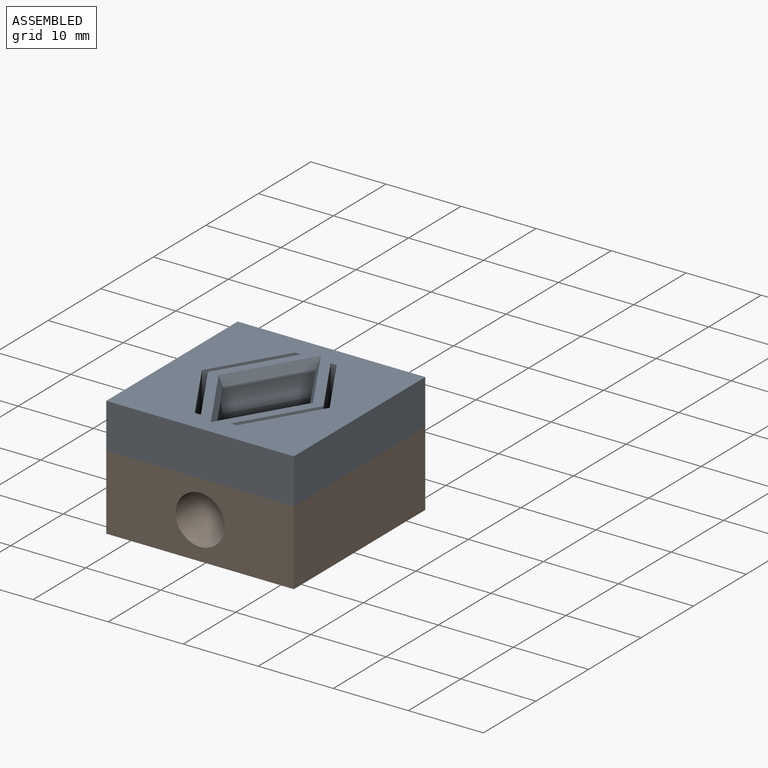
[diagram: assembled view]
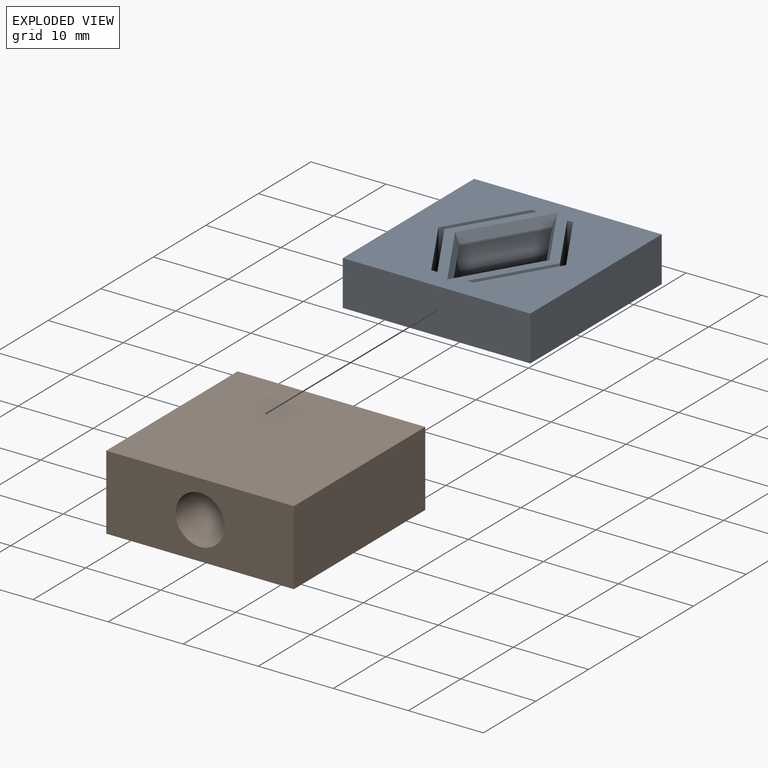
[diagram: exploded view]
GUIDED TOUR — FREECAD ASSEMBLY "DockLink_application_example_assembly"

This assembly has 2 components, labeled P0..P1 below (a component is one placed body or linked part; the same part can appear more than once), held together by 1 modeled joint. A joint is a constraint between two components; its type names the relative motion it leaves free:
  FASTENED — locks the two components together rigidly (no relative motion).
Axis/direction vectors are unit vectors and 'through' points are millimeter coordinates, both in the assembly's world frame.

MATES
  1. FASTENED [Fixed] "Joint": P1 <-> P0, direction (0.000, -1.000, 0.000) through (-12.50, 0.00, 50.00) mm

ASSEMBLY ORDER
  1. P1 — the base component [order verified]
  2. P0 [order verified]
Order-tag legend:
  [order verified] — this step's position reverses a verified removal order: the component was checked to insert without passing through the ones already placed.

Of the 2 components, 1 carries a construction recipe — the FreeCAD feature program (sketches with constraints, then the solid features that consume them) that regenerates the part from scratch, quoted from this document or from the linked companion document it references; the rest are supplied as boundary geometry only. The tour below walks the components in assembly order: each is shown spotlighted twice — in the assembled view, then in the exploded view, where a leader line traces a displaced component back to its assembled socket (components that stay in place when exploded have no leader line; saturated green if recipe-attached, orange if geometry-only; every other component desaturated gray) — followed by its recipe or geometry summary and the mates that hold it.
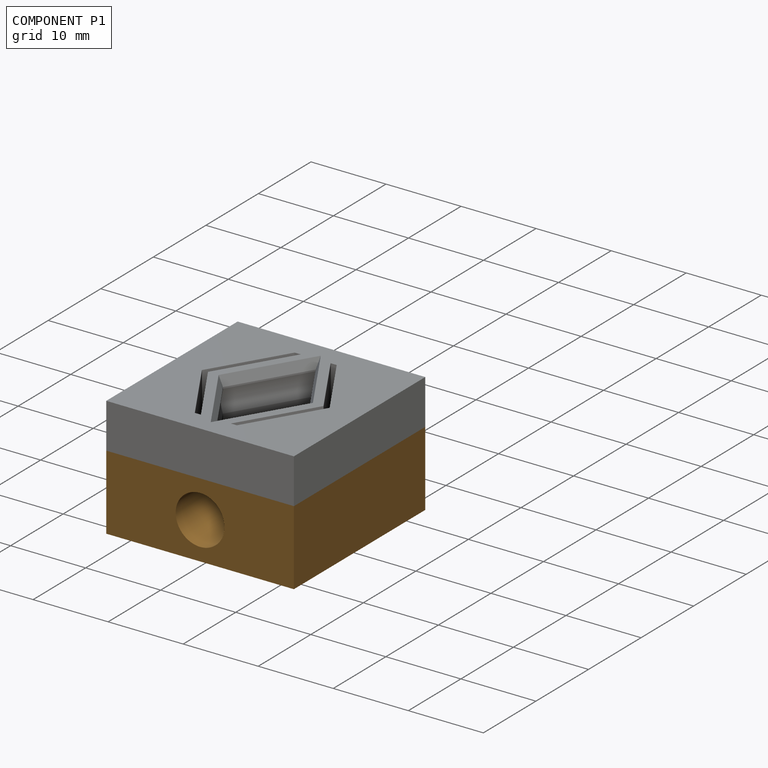
[diagram: component P1 — assembled]
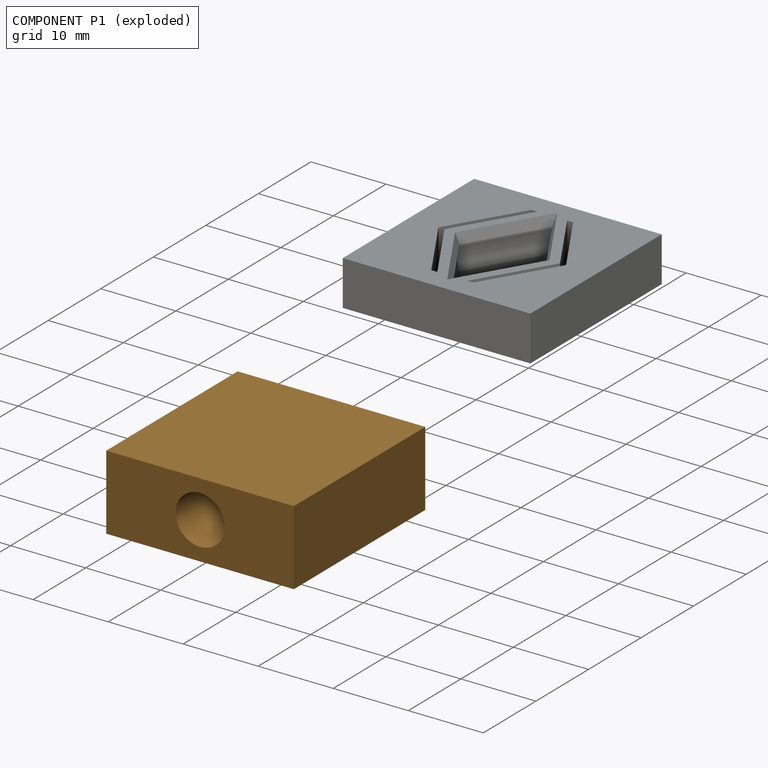
[diagram: component P1 — exploded]
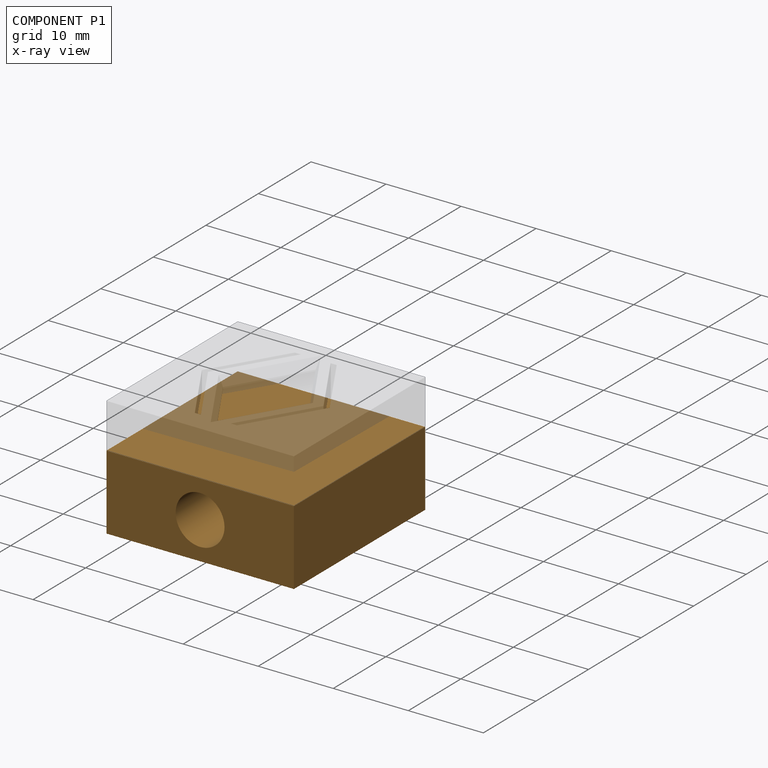
[diagram: component P1 — x-ray view]
COMPONENT P1 — geometry summary ("DockLink_app_example"; no construction recipe available for this part):
  bounding box: 25.0 x 25.0 x 10.0 mm
  tessellated surface: 520 triangles
  volume: 5420 mm^3 (87% of its bounding box)
  symmetry: 2-fold rotationally symmetric about the x axis; 2-fold rotationally symmetric about the z axis; mirror-symmetric across its x mid-plane, y mid-plane
Held by: FASTENED mate "Joint" to P0.
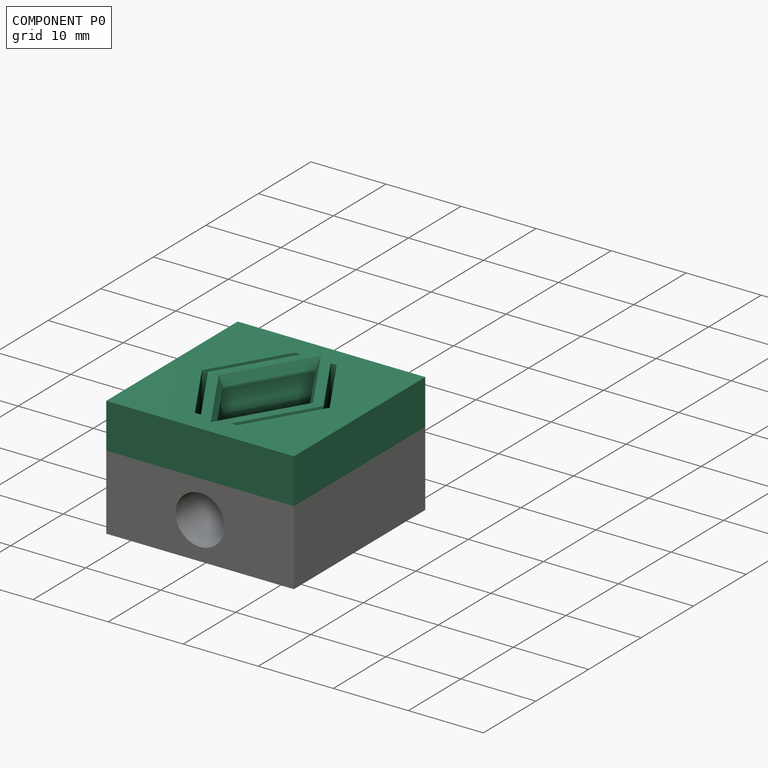
[diagram: component P0 — assembled]
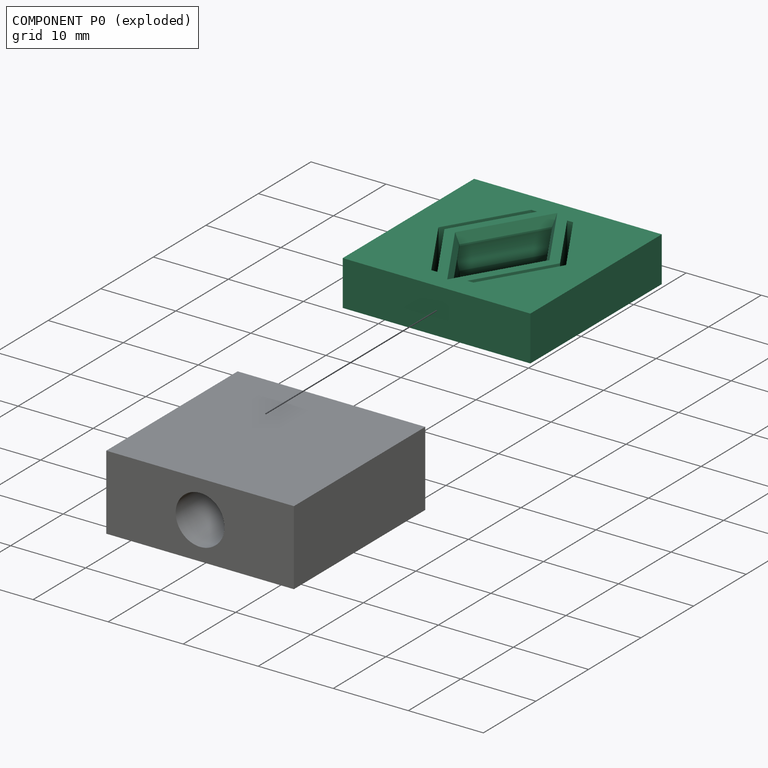
[diagram: component P0 — exploded]
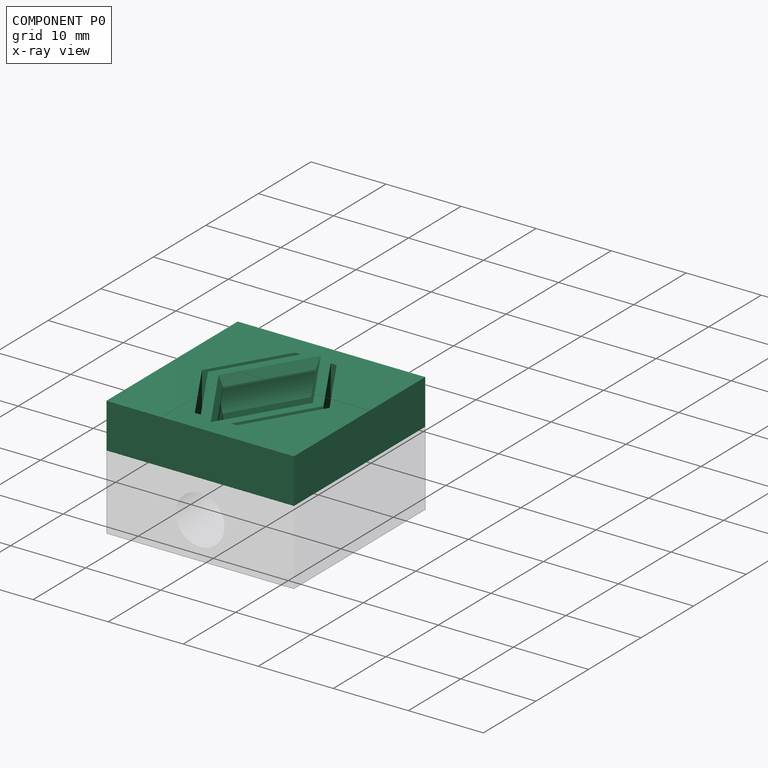
[diagram: component P0 — x-ray view]
COMPONENT P0 — recipe-attached ("Body_DockLink_female", a linked part whose construction recipe lives in a companion FreeCAD document of the same project; that document's serialized recipe follows).
Held by: FASTENED mate "Joint" to P1.
Construction recipe (the companion document, serialized — sketch geometry with constraints, then the solid features built on it; lengths are millimeters unless a unit is written):

FCSTD DOCUMENT  (FreeCAD 1.1R20251031 (Git shallow))
Label: DockLink_female
License: All rights reserved
LicenseURL: https://en.wikipedia.org/wiki/All_rights_reserved
objects: Sketcher::SketchObject×5, App::Point×1, App::VarSet×1, PartDesign::Pad×1, PartDesign::SubtractiveLoft×1, PartDesign::Chamfer×1, PartDesign::Pocket×1, PartDesign::Body×1
note: 23 computed .brp shape members not serialized (recipe doc carries the construction recipe); baked Part::Feature solids carry a one-line shape summary decoded from their .brp

FEATURE [App::Point] Origin001
  Role = Origin
FEATURE [Sketcher::SketchObject] Sketch  label="Sketch_clip_base"
  ArcFitTolerance = 1e-06
  AttachmentSupport = -> [Origin]
  ExternalTypes = [0]
  FullyConstrained = true
  MakeInternals = false
  MapMode = 5
  expr: Constraints[10] = VarSet.height_printbase
  expr: Constraints[11] = VarSet.width_printbase
  expr: Constraints[59] = VarSet.thickness_clip
  expr: Constraints[60] = VarSet.indent_depth_clip + 0.5 mm
  expr: Constraints[70] = VarSet.border_vert
  expr: Constraints[71] = VarSet.border_hori
  sketch-geometry (28):
    g0: LineSegment StartX=-12.5 StartY=12.5 StartZ=0 EndX=-12.5 EndY=-12.5 EndZ=0
    g1: LineSegment StartX=-12.5 StartY=-12.5 StartZ=0 EndX=12.5 EndY=-12.5 EndZ=0
    g2: LineSegment StartX=12.5 StartY=-12.5 StartZ=0 EndX=12.5 EndY=12.5 EndZ=0
    g3: LineSegment StartX=12.5 StartY=12.5 StartZ=0 EndX=-12.5 EndY=12.5 EndZ=0
    g4: GeomPoint [constr] X=0 Y=0 Z=0
    g5: LineSegment [constr] StartX=-8.5 StartY=9.5 StartZ=0 EndX=-8.5 EndY=-9.5 EndZ=0
    g6: LineSegment [constr] StartX=-8.5 StartY=-9.5 StartZ=0 EndX=8.5 EndY=-9.5 EndZ=0
    g7: LineSegment [constr] StartX=8.5 StartY=-9.5 StartZ=0 EndX=8.5 EndY=9.5 EndZ=0
    g8: LineSegment [constr] StartX=8.5 StartY=9.5 StartZ=0 EndX=-8.5 EndY=9.5 EndZ=0
    g9: GeomPoint [constr] X=0 Y=0 Z=0
    g10: LineSegment StartX=0 StartY=9.5 StartZ=0 EndX=-5.7 EndY=0 EndZ=0
    g11: LineSegment StartX=-5.7 StartY=0 StartZ=0 EndX=0 EndY=-9.5 EndZ=0
    g12: LineSegment StartX=3e-16 StartY=-9.5 StartZ=0 EndX=5.7 EndY=0 EndZ=0
    g13: LineSegment StartX=5.7 StartY=0 StartZ=0 EndX=0 EndY=9.5 EndZ=0
    g14: LineSegment StartX=-2 StartY=9.5 StartZ=0 EndX=-7.7 EndY=0 EndZ=0
    g15: LineSegment StartX=-7.7 StartY=0 StartZ=0 EndX=-2 EndY=-9.5 EndZ=0
    g16: LineSegment StartX=2 StartY=-9.5 StartZ=0 EndX=7.7 EndY=0 EndZ=0
    g17: LineSegment StartX=7.7 StartY=0 StartZ=0 EndX=2 EndY=9.5 EndZ=0
    g18: LineSegment StartX=-8.5 StartY=5.9e-15 StartZ=0 EndX=-2.8 EndY=9.5 EndZ=0
    g19: LineSegment StartX=-8.5 StartY=5.9e-15 StartZ=0 EndX=-2.8 EndY=-9.5 EndZ=0
    g20: LineSegment StartX=2.8 StartY=-9.5 StartZ=0 EndX=8.5 EndY=5.3e-15 EndZ=0
    g21: LineSegment StartX=8.5 StartY=5.3e-15 StartZ=0 EndX=2.8 EndY=9.5 EndZ=0
    g22: LineSegment [constr] StartX=-7.7 StartY=0 StartZ=0 EndX=-5.7 EndY=0 EndZ=0
    g23: LineSegment [constr] StartX=5.7 StartY=0 StartZ=0 EndX=7.7 EndY=0 EndZ=0
    g24: LineSegment StartX=-2.8 StartY=9.5 StartZ=0 EndX=-2 EndY=9.5 EndZ=0
    g25: LineSegment StartX=2 StartY=9.5 StartZ=0 EndX=2.8 EndY=9.5 EndZ=0
    g26: LineSegment StartX=-2.8 StartY=-9.5 StartZ=0 EndX=-2 EndY=-9.5 EndZ=0
    g27: LineSegment StartX=2 StartY=-9.5 StartZ=0 EndX=2.8 EndY=-9.5 EndZ=0
  constraints (72):
    c: Coincident(g0,g1)
    c: Coincident(g1,g2)
    c: Coincident(g2,g3)
    c: Coincident(g3,g0)
    c: Vertical(g0)
    c: Vertical(g2)
    c: Horizontal(g1)
    c: Horizontal(g3)
    c: Symmetric(g2,g0,g4)
    c: Coincident(g4,g-1)
    c: DistanceY(g0,g0) = 25
    c: DistanceX(g3,g3) = 25
    c: Coincident(g5,g6)
    c: Coincident(g6,g7)
    c: Coincident(g7,g8)
    c: Coincident(g8,g5)
    c: Vertical(g5)
    c: Vertical(g7)
    c: Horizontal(g6)
    c: Horizontal(g8)
    c: Symmetric(g7,g5,g9)
    c: Coincident(g9,g4)
    c: Symmetric(g8,g8,g10)
    c: PointOnObject(g10,g-1)
    c: Coincident(g11,g10)
    c: Symmetric(g6,g6,g11)
    c: Coincident(g12,g11)
    c: Coincident(g13,g12)
    c: Coincident(g13,g10)
    c: PointOnObject(g14,g8)
    c: PointOnObject(g14,g-1)
    c: Coincident(g15,g14)
    c: PointOnObject(g15,g6)
    c: PointOnObject(g16,g6)
    c: PointOnObject(g16,g-1)
    c: Coincident(g17,g16)
    c: PointOnObject(g17,g8)
    c: Parallel(g10,g14)
    c: Parallel(g11,g15)
    c: Parallel(g12,g16)
    c: Parallel(g13,g17)
    c: Symmetric(g5,g5,g18)
    c: PointOnObject(g18,g8)
    c: Coincident(g19,g18)
    c: PointOnObject(g19,g6)
    c: PointOnObject(g20,g6)
    c: Symmetric(g7,g7,g20)
    c: Coincident(g21,g20)
    c: PointOnObject(g21,g8)
    c: Parallel(g17,g21)
    c: Parallel(g16,g20)
    c: Parallel(g15,g19)
    c: Parallel(g18,g14)
    c: Coincident(g22,g14)
    c: Coincident(g22,g10)
    c: Coincident(g23,g12)
    c: Coincident(g23,g16)
    c: Equal(g22,g23)
    c: Symmetric(g10,g12,g4)
    c: Distance(g22,g22) = 2
    c: Distance(g14,g18) = 0.8
    c: DistanceX(g10,g12) = 11.4  'width_male'
    c: Coincident(g24,g18)
    c: Coincident(g24,g14)
    c: Coincident(g25,g17)
    c: Coincident(g25,g21)
    c: Coincident(g26,g19)
    c: Coincident(g26,g15)
    c: Coincident(g27,g16)
    c: Coincident(g27,g20)
    c: Distance(g1,g6) = 3
    c: Distance(g2,g7) = 4
FEATURE [App::VarSet] VarSet
  border_hori = 4
  border_vert = 3
  height_clip = 20
  height_printbase = 25
  indent_depth_clip = 0.3
  indent_distance = 3
  indent_height = 3
  thickness_base = 6
  thickness_clip = 2
  width_clip = 20
  width_printbase = 25
FEATURE [PartDesign::Pad] Pad  label="Pad_clip_base"
  Direction = (0,0,1)
  Length = 6
  Length2 = 10
  Profile = -> Sketch
  ReferenceAxis = -> Sketch [N_Axis]
  Refine = true
  SideType = 0
  Suppressed = false
  Type = 0
  Type2 = 0
  expr: Length = VarSet.thickness_base
FEATURE [Sketcher::SketchObject] Sketch002  label="Sketch_indent_top"
  ArcFitTolerance = 1e-06
  AttachmentOffset = pos=(0,0,-1.5) rot=(0,0,1;0rad)
  AttachmentSupport = -> [Pad]
  ExternalGeometry = -> [Pad]
  ExternalTypes = [0,0,0,0]
  FullyConstrained = true
  MakeInternals = false
  MapMode = 5
  Placement = pos=(0,0,4.5) rot=(0,0,1;0rad)
  expr: .AttachmentOffset.Base.z = -VarSet.indent_distance + VarSet.indent_height / 2
  sketch-geometry (4):
    g0: LineSegment StartX=-5.7 StartY=0 StartZ=0 EndX=-5.3e-15 EndY=-9.5 EndZ=0
    g1: LineSegment StartX=-5.3e-15 StartY=-9.5 StartZ=0 EndX=5.7 EndY=0 EndZ=0
    g2: LineSegment StartX=-5.7 StartY=0 StartZ=0 EndX=-2.7e-15 EndY=9.5 EndZ=0
    g3: LineSegment StartX=5.7 StartY=0 StartZ=0 EndX=-3.6e-15 EndY=9.5 EndZ=0
  constraints (8):
    c: Coincident(g0,g-5)
    c: Coincident(g0,g-6)
    c: Coincident(g1,g0)
    c: Coincident(g1,g-4)
    c: Coincident(g2,g0)
    c: Coincident(g2,g-3)
    c: Coincident(g3,g1)
    c: Coincident(g3,g2)
FEATURE [Sketcher::SketchObject] Sketch003  label="Sketch_indent_bottom"
  ArcFitTolerance = 1e-06
  AttachmentOffset = pos=(0,0,-4.5) rot=(0,0,1;0rad)
  AttachmentSupport = -> [Pad]
  ExternalGeometry = -> [Pad]
  ExternalTypes = [0,0,0,0]
  FullyConstrained = true
  MakeInternals = false
  MapMode = 5
  Placement = pos=(0,0,1.5) rot=(0,0,1;0rad)
  expr: .AttachmentOffset.Base.z = -VarSet.indent_distance - VarSet.indent_height / 2
  sketch-geometry (4):
    g0: LineSegment StartX=-5.7 StartY=0 StartZ=0 EndX=-9e-16 EndY=9.5 EndZ=0
    g1: LineSegment StartX=-9e-16 StartY=9.5 StartZ=0 EndX=5.7 EndY=0 EndZ=0
    g2: LineSegment StartX=9e-16 StartY=-9.5 StartZ=0 EndX=5.7 EndY=0 EndZ=0
    g3: LineSegment StartX=-5.7 StartY=0 StartZ=0 EndX=9e-16 EndY=-9.5 EndZ=0
  constraints (8):
    c: Coincident(g0,g-4)
    c: Coincident(g0,g-5)
    c: Coincident(g1,g0)
    c: Coincident(g1,g-6)
    c: Coincident(g2,g-3)
    c: Coincident(g2,g1)
    c: Coincident(g3,g0)
    c: Coincident(g3,g2)
FEATURE [Sketcher::SketchObject] Sketch001  label="Sketch_indent_middle"
  ArcFitTolerance = 1e-06
  AttachmentOffset = pos=(0,0,-3) rot=(0,0,1;0rad)
  AttachmentSupport = -> [Pad]
  ExternalGeometry = -> [Pad,Sketch003]
  ExternalTypes = [0,0,0,0,0,0,0,0]
  FullyConstrained = true
  MakeInternals = false
  MapMode = 5
  Placement = pos=(0,0,3) rot=(0,0,1;0rad)
  expr: .AttachmentOffset.Base.z = -VarSet.indent_distance
  expr: Constraints[1] = VarSet.indent_depth_clip
  sketch-geometry (4):
    g0: LineSegment StartX=-6 StartY=0 StartZ=0 EndX=0 EndY=10 EndZ=0
    g1: LineSegment StartX=0 StartY=10 StartZ=0 EndX=6 EndY=0 EndZ=0
    g2: LineSegment StartX=6 StartY=0 StartZ=0 EndX=0 EndY=-10 EndZ=0
    g3: LineSegment StartX=-6 StartY=0 StartZ=0 EndX=0 EndY=-10 EndZ=0
  constraints (12):
    c: PointOnObject(g0,g-1)
    c: Distance(g0,g-3) = 0.3
    c: PointOnObject(g0,g-2)
    c: Coincident(g1,g0)
    c: PointOnObject(g1,g-1)
    c: Coincident(g2,g1)
    c: PointOnObject(g2,g-2)
    c: Coincident(g3,g0)
    c: Coincident(g3,g2)
    c: Parallel(g3,g-7)
    c: Parallel(g1,g-9)
    c: Parallel(g2,g-10)
FEATURE [PartDesign::SubtractiveLoft] SubtractiveLoft
  BaseFeature = -> Pad
  Closed = false
  Profile = -> Sketch002
  Refine = true
  Ruled = false
  Sections = -> [Sketch001,Sketch003]
  Suppressed = false
FEATURE [PartDesign::Chamfer] Chamfer
  Angle = 45
  Base = -> SubtractiveLoft [Edge32,Edge29,Edge30,Edge31]
  BaseFeature = -> SubtractiveLoft
  ChamferType = 1
  FlipDirection = false
  Refine = true
  Size = 0.5
  Size2 = 1.3
  SupportTransform = false
  Suppressed = false
  UseAllEdges = false
  expr: Size = VarSet.thickness_clip - 1.5 mm
  expr: Size2 = VarSet.indent_distance - VarSet.indent_height / 2 - 0.2 mm
FEATURE [Sketcher::SketchObject] Sketch004
  ArcFitTolerance = 1e-06
  AttachmentSupport = -> [SubtractiveLoft]
  ExternalGeometry = -> [SubtractiveLoft]
  ExternalTypes = [0,0,0,0]
  FullyConstrained = true
  MakeInternals = false
  MapMode = 5
  Placement = pos=(0,0,0) rot=(1,0,0;3.14159rad)
  sketch-geometry (2):
    g0: LineSegment StartX=-2.8 StartY=-9.5 StartZ=0 EndX=2.8 EndY=-9.5 EndZ=0
    g1: LineSegment StartX=-2.8 StartY=9.5 StartZ=0 EndX=2.8 EndY=9.5 EndZ=0
  constraints (4):
    c: Coincident(g0,g-5)
    c: Coincident(g0,g-6)
    c: Coincident(g1,g-3)
    c: Coincident(g1,g-4)
FEATURE [PartDesign::Pocket] Pocket
  BaseFeature = -> Chamfer
  Direction = (0,0,1)
  Length = 0.3
  Length2 = 5
  Profile = -> Sketch004
  ReferenceAxis = -> Sketch004 [N_Axis]
  Refine = true
  SideType = 0
  Suppressed = false
  Type = 0
  Type2 = 0
FEATURE [PartDesign::Body] Body  label="Body_DockLink_female"
  AllowCompound = true
  Group = -> [Sketch,Pad,Sketch001,Sketch002,Sketch003,SubtractiveLoft,Chamfer,VarSet,Sketch004,Pocket]
  Origin = -> Origin
  Tip = -> Pocket
PROVENANCE & LICENSES
Assembly and component geometry: a FreeCAD (.FCStd) document from a public repository crawl; components, placements and joints were extracted with FreeCAD and each solid tessellated.
Construction recipes: the document's own serialized feature recipes (and, for linked parts, the recipes of companion documents from the same project).
License: mit.
Joints: native FreeCAD joints and A2plus constraints are mapped to standard mate types.
Verification: 1 of this assembly's 2 components carries a construction recipe (1 from linked companion documents in the same project); the rest are geometry-only. Every component's tessellation passed the extraction mesh gates (mesh-volume checksum against the B-rep where available, bounding-box inflation <= 2%).
Renders: orthographic iso camera (az 35 / el 25); the floor grid conveys scale (grid pitch printed in each image; no ruler). In the exploded view each component is displaced by its stored offset vector: the offsets alone carry the explosion direction (mate normal/axis signs are not orientation cues and do not encode it), and separation distances are assigned per mate-chain, not proportionally to assembly-order depth.
